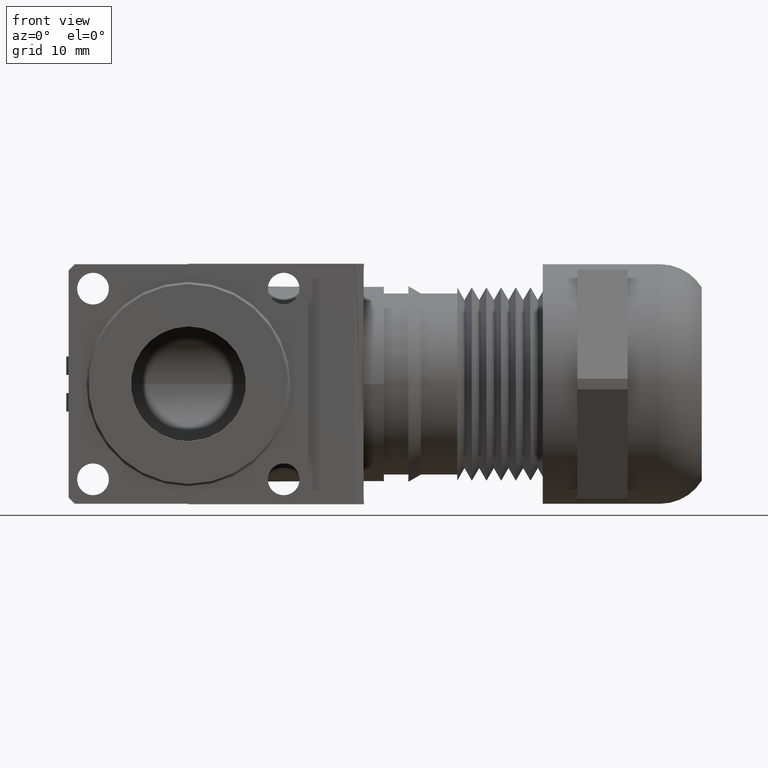
[diagram: clean part render]
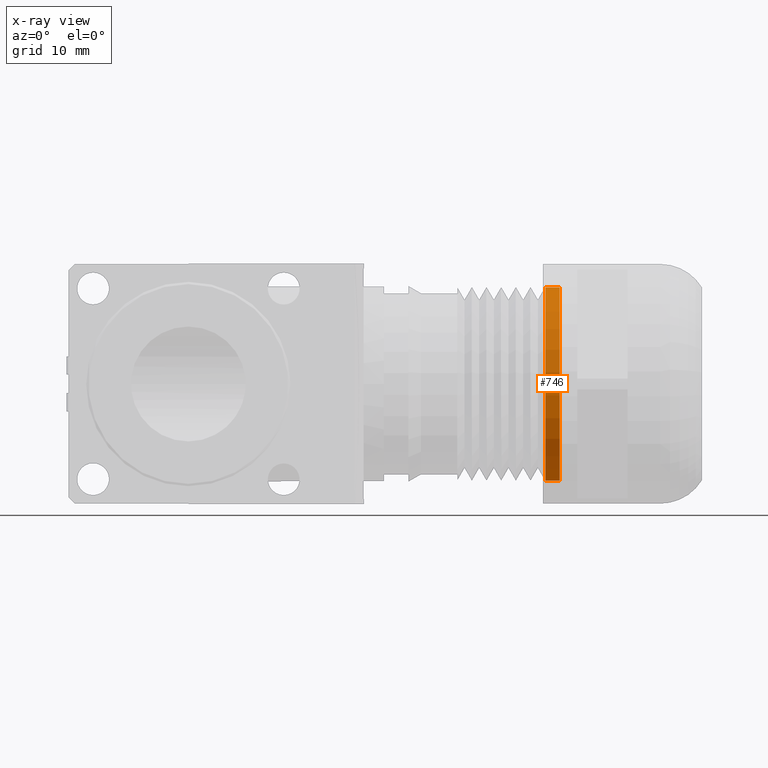
[diagram: x-ray — body ghosted, one internal face saturated and labeled with its STEP entity id]
A machine part, front view, then the same camera in x-ray: the body is ghosted and one INTERNAL B-rep face — a face not visible from any outside direction — is saturated and labeled: STEP entity #746.
In plain terms, the highlighted cylindrical surface (partial cylindrical patch) has radius 10.033 mm, axis along (-1, 0, 0).
Its self-contained STEP definition (entity closure, byte-faithful):
#697 = ORIENTED_EDGE ( 'NONE', *, *, #765, .F. ) ;
#700 = ORIENTED_EDGE ( 'NONE', *, *, #764, .F. ) ;
#718 = VERTEX_POINT ( 'NONE', #3114 ) ;
#726 = VERTEX_POINT ( 'NONE', #3026 ) ;
#734 = EDGE_CURVE ( 'NONE', #726, #762, #3067, .T. ) ;
#742 = EDGE_CURVE ( 'NONE', #762, #769, #3012, .T. ) ;
#746 = ADVANCED_FACE ( 'NONE', ( #3086 ), #3084, .F. ) ;
#762 = VERTEX_POINT ( 'NONE', #3142 ) ;
#764 = EDGE_CURVE ( 'NONE', #718, #769, #3153, .T. ) ;
#765 = EDGE_CURVE ( 'NONE', #726, #718, #3149, .T. ) ;
#766 = ORIENTED_EDGE ( 'NONE', *, *, #742, .T. ) ;
#769 = VERTEX_POINT ( 'NONE', #3178 ) ;
#770 = ORIENTED_EDGE ( 'NONE', *, *, #734, .T. ) ;
#775 = EDGE_LOOP ( 'NONE', ( #697, #770, #766, #700 ) ) ;
#2991 = DIRECTION ( 'NONE',  ( 0.0000000000000000000, 0.0000000000000000000, 1.000000000000000000 ) ) ;
#2992 = DIRECTION ( 'NONE',  ( -1.000000000000000000, 0.0000000000000000000, 0.0000000000000000000 ) ) ;
#2993 = CARTESIAN_POINT ( 'NONE',  ( -0.9225853032038597900, 0.0000000000000000000, 0.0000000000000000000 ) ) ;
#3009 = DIRECTION ( 'NONE',  ( 0.0000000000000000000, 0.0000000000000000000, 1.000000000000000000 ) ) ;
#3010 = DIRECTION ( 'NONE',  ( -1.000000000000000000, 0.0000000000000000000, 0.0000000000000000000 ) ) ;
#3011 = AXIS2_PLACEMENT_3D ( 'NONE', #3032, #3010, #3009 ) ;
#3012 = CIRCLE ( 'NONE', #3011, 0.3950000000000000200 ) ;
#3026 = CARTESIAN_POINT ( 'NONE',  ( 0.7192378696696634100, 4.837354856632045600E-017, -0.3950000000000000200 ) ) ;
#3032 = CARTESIAN_POINT ( 'NONE',  ( 0.6600000000000000300, 0.0000000000000000000, 0.0000000000000000000 ) ) ;
#3059 = DIRECTION ( 'NONE',  ( -1.000000000000000000, 0.0000000000000000000, 0.0000000000000000000 ) ) ;
#3060 = VECTOR ( 'NONE', #3059, 39.37007874015748100 ) ;
#3061 = CARTESIAN_POINT ( 'NONE',  ( -0.9225853032038597900, 4.837354856632045600E-017, -0.3950000000000000200 ) ) ;
#3067 = LINE ( 'NONE', #3061, #3060 ) ;
#3084 = CYLINDRICAL_SURFACE ( 'NONE', #3085, 0.3950000000000000200 ) ;
#3085 = AXIS2_PLACEMENT_3D ( 'NONE', #2993, #2992, #2991 ) ;
#3086 = FACE_OUTER_BOUND ( 'NONE', #775, .T. ) ;
#3114 = CARTESIAN_POINT ( 'NONE',  ( 0.7192378696696634100, 0.0000000000000000000, 0.3950000000000000200 ) ) ;
#3142 = CARTESIAN_POINT ( 'NONE',  ( 0.6600000000000000300, 4.837354856632045600E-017, -0.3950000000000000200 ) ) ;
#3145 = DIRECTION ( 'NONE',  ( 0.0000000000000000000, 0.0000000000000000000, 1.000000000000000000 ) ) ;
#3146 = DIRECTION ( 'NONE',  ( -1.000000000000000000, 0.0000000000000000000, 0.0000000000000000000 ) ) ;
#3147 = CARTESIAN_POINT ( 'NONE',  ( 0.7192378696696634100, 0.0000000000000000000, 0.0000000000000000000 ) ) ;
#3148 = AXIS2_PLACEMENT_3D ( 'NONE', #3147, #3146, #3145 ) ;
#3149 = CIRCLE ( 'NONE', #3148, 0.3950000000000000200 ) ;
#3150 = DIRECTION ( 'NONE',  ( -1.000000000000000000, 0.0000000000000000000, 0.0000000000000000000 ) ) ;
#3151 = VECTOR ( 'NONE', #3150, 39.37007874015748100 ) ;
#3152 = CARTESIAN_POINT ( 'NONE',  ( -0.9225853032038597900, 0.0000000000000000000, 0.3950000000000000200 ) ) ;
#3153 = LINE ( 'NONE', #3152, #3151 ) ;
#3178 = CARTESIAN_POINT ( 'NONE',  ( 0.6600000000000000300, 0.0000000000000000000, 0.3950000000000000200 ) ) ;